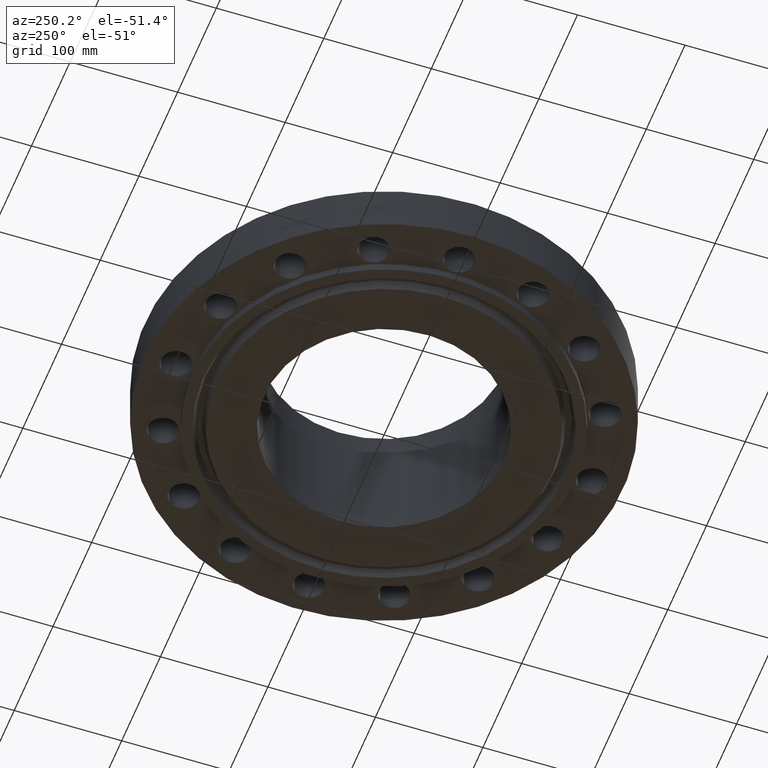
[diagram: clean part render]
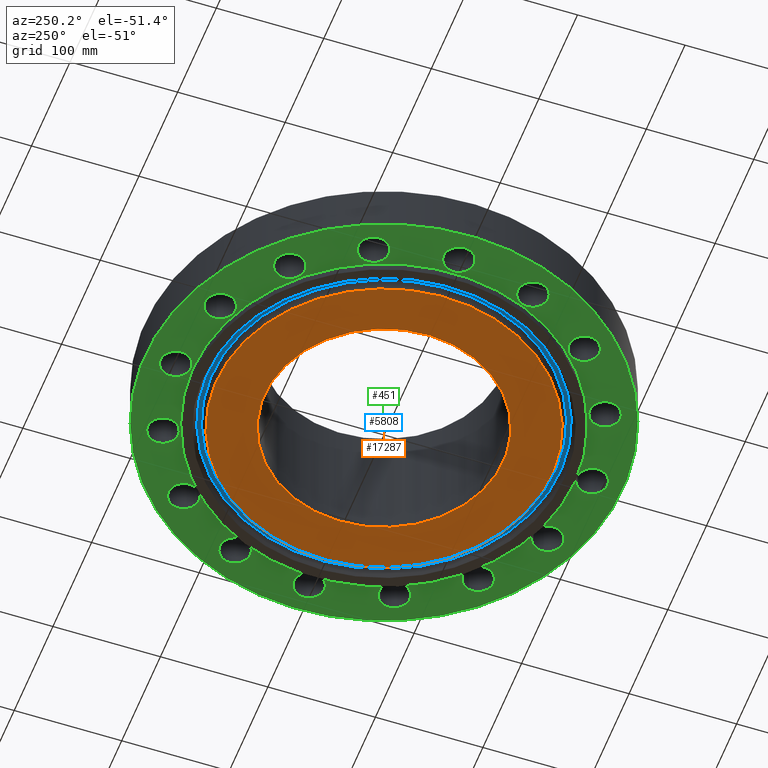
[diagram: same view with three faces highlighted in distinct colors, each labeled with its STEP entity id]
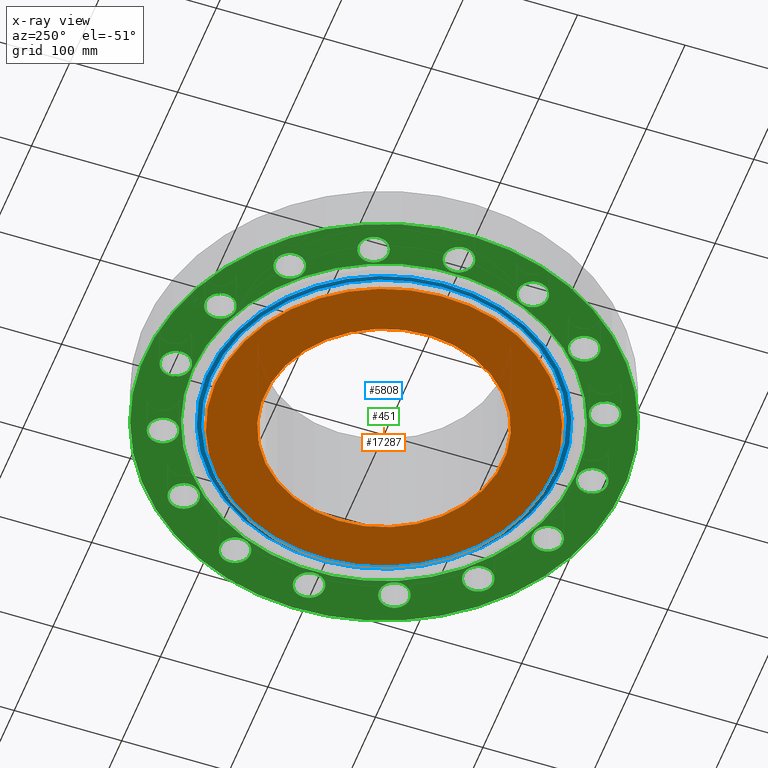
[diagram: x-ray of the same camera — body ghosted, the three highlighted faces saturated]
A machine part, auxiliary view with three faces highlighted in distinct colors.
The next image is the same camera in x-ray (body ghosted, the three faces saturated) — at least one of them is partly hidden behind the body in this view.
Their STEP definitions:

[orange] entity #17287 — the highlighted planar face has unit normal (0, 0, -1).
#1771=AXIS2_PLACEMENT_3D('Plane Axis2P3D',#1768,#1769,#1770) ;
#17189=AXIS2_PLACEMENT_3D('Circle Axis2P3D',#17187,#17188,$) ;
#17213=AXIS2_PLACEMENT_3D('Circle Axis2P3D',#17211,#17212,$) ;
#17271=AXIS2_PLACEMENT_3D('Circle Axis2P3D',#17269,#17270,$) ;
#17280=AXIS2_PLACEMENT_3D('Circle Axis2P3D',#17278,#17279,$) ;
#1768=CARTESIAN_POINT('Axis2P3D Location',(0.,4.37500000002,-0.313000000001)) ;
#17177=CARTESIAN_POINT('Vertex',(-2.94391251983,5.3887957213,-0.313000000001)) ;
#17184=CARTESIAN_POINT('Vertex',(2.94391251983,-5.38879572133,-0.313000000001)) ;
#17187=CARTESIAN_POINT('Axis2P3D Location',(0.,0.,-0.313000000002)) ;
#17211=CARTESIAN_POINT('Axis2P3D Location',(0.,0.,-0.313000000002)) ;
#17269=CARTESIAN_POINT('Axis2P3D Location',(1.28121485424E-011,-2.36649894781E-011,-0.313000000001)) ;
#17273=CARTESIAN_POINT('Vertex',(2.0974867314,3.83942370829,-0.312999999987)) ;
#17275=CARTESIAN_POINT('Vertex',(-2.0974867314,-3.83942370829,-0.313000000001)) ;
#17278=CARTESIAN_POINT('Axis2P3D Location',(-1.28121485424E-011,-9.66673810115E-012,-0.313000000001)) ;
#1769=DIRECTION('Axis2P3D Direction',(0.,0.,-0.0393700787402)) ;
#1770=DIRECTION('Axis2P3D XDirection',(0.0393700787402,0.,0.)) ;
#17188=DIRECTION('Axis2P3D Direction',(0.,0.,0.0393700787402)) ;
#17212=DIRECTION('Axis2P3D Direction',(0.,0.,0.0393700787402)) ;
#17270=DIRECTION('Axis2P3D Direction',(0.,0.,-0.0393700787402)) ;
#17279=DIRECTION('Axis2P3D Direction',(0.,0.,-0.0393700787402)) ;
#17266=ORIENTED_EDGE('',*,*,#17191,.T.) ;
#17267=ORIENTED_EDGE('',*,*,#17215,.T.) ;
#17284=ORIENTED_EDGE('',*,*,#17277,.F.) ;
#17285=ORIENTED_EDGE('',*,*,#17282,.F.) ;
#17286=FACE_BOUND('',#17283,.T.) ;
#17287=ADVANCED_FACE('PartBody',(#17268,#17286),#1772,.T.) ;
#17190=CIRCLE('generated circle',#17189,6.14050000002) ;
#17214=CIRCLE('generated circle',#17213,6.14050000002) ;
#17272=CIRCLE('generated circle',#17271,4.37500000002) ;
#17281=CIRCLE('generated circle',#17280,4.37500000002) ;
#17191=EDGE_CURVE('',#17178,#17185,#17190,.F.) ;
#17215=EDGE_CURVE('',#17185,#17178,#17214,.F.) ;
#17277=EDGE_CURVE('',#17274,#17276,#17272,.T.) ;
#17282=EDGE_CURVE('',#17276,#17274,#17281,.T.) ;
#17265=EDGE_LOOP('',(#17266,#17267)) ;
#17283=EDGE_LOOP('',(#17284,#17285)) ;
#17268=FACE_OUTER_BOUND('',#17265,.T.) ;
#1772=PLANE('',#1771) ;
#17178=VERTEX_POINT('',#17177) ;
#17185=VERTEX_POINT('',#17184) ;
#17274=VERTEX_POINT('',#17273) ;
#17276=VERTEX_POINT('',#17275) ;

[blue] entity #5808 — the highlighted planar face has unit normal (0, 0, -1).
#139=AXIS2_PLACEMENT_3D('Plane Axis2P3D',#136,#137,#138) ;
#2768=AXIS2_PLACEMENT_3D('Circle Axis2P3D',#2766,#2767,$) ;
#2799=AXIS2_PLACEMENT_3D('Circle Axis2P3D',#2797,#2798,$) ;
#5792=AXIS2_PLACEMENT_3D('Circle Axis2P3D',#5790,#5791,$) ;
#5801=AXIS2_PLACEMENT_3D('Circle Axis2P3D',#5799,#5800,$) ;
#136=CARTESIAN_POINT('Axis2P3D Location',(0.,7.00000000003,0.)) ;
#2763=CARTESIAN_POINT('Vertex',(-3.09522925424,5.66577914576,0.)) ;
#2766=CARTESIAN_POINT('Axis2P3D Location',(0.,0.,0.)) ;
#2770=CARTESIAN_POINT('Vertex',(3.09522925424,-5.66577914576,0.)) ;
#2797=CARTESIAN_POINT('Axis2P3D Location',(0.,0.,0.)) ;
#5790=CARTESIAN_POINT('Axis2P3D Location',(5.59482469102E-016,6.70259997985E-013,0.)) ;
#5794=CARTESIAN_POINT('Vertex',(3.01744636302,-5.52339851841,0.)) ;
#5796=CARTESIAN_POINT('Vertex',(-3.01744636302,5.52339851842,0.)) ;
#5799=CARTESIAN_POINT('Axis2P3D Location',(-5.59482469102E-016,6.65784138232E-013,0.)) ;
#137=DIRECTION('Axis2P3D Direction',(0.,0.,-0.0393700787402)) ;
#138=DIRECTION('Axis2P3D XDirection',(0.0393700787402,0.,0.)) ;
#2767=DIRECTION('Axis2P3D Direction',(0.,0.,0.0393700787402)) ;
#2798=DIRECTION('Axis2P3D Direction',(0.,0.,0.0393700787402)) ;
#5791=DIRECTION('Axis2P3D Direction',(0.,0.,-0.0393700787402)) ;
#5800=DIRECTION('Axis2P3D Direction',(0.,0.,-0.0393700787402)) ;
#5787=ORIENTED_EDGE('',*,*,#2772,.F.) ;
#5788=ORIENTED_EDGE('',*,*,#2801,.F.) ;
#5805=ORIENTED_EDGE('',*,*,#5798,.T.) ;
#5806=ORIENTED_EDGE('',*,*,#5803,.T.) ;
#5807=FACE_BOUND('',#5804,.T.) ;
#5808=ADVANCED_FACE('PartBody',(#5789,#5807),#140,.T.) ;
#2769=CIRCLE('generated circle',#2768,6.45612093016) ;
#2800=CIRCLE('generated circle',#2799,6.45612093016) ;
#5793=CIRCLE('generated circle',#5792,6.29387906993) ;
#5802=CIRCLE('generated circle',#5801,6.29387906993) ;
#2772=EDGE_CURVE('',#2764,#2771,#2769,.T.) ;
#2801=EDGE_CURVE('',#2771,#2764,#2800,.T.) ;
#5798=EDGE_CURVE('',#5795,#5797,#5793,.F.) ;
#5803=EDGE_CURVE('',#5797,#5795,#5802,.F.) ;
#5786=EDGE_LOOP('',(#5787,#5788)) ;
#5804=EDGE_LOOP('',(#5805,#5806)) ;
#5789=FACE_OUTER_BOUND('',#5786,.T.) ;
#140=PLANE('',#139) ;
#2764=VERTEX_POINT('',#2763) ;
#2771=VERTEX_POINT('',#2770) ;
#5795=VERTEX_POINT('',#5794) ;
#5797=VERTEX_POINT('',#5796) ;

[green] entity #451 — the highlighted planar face has unit normal (0, 0, -1).
#51=AXIS2_PLACEMENT_3D('Circle Axis2P3D',#49,#50,$) ;
#139=AXIS2_PLACEMENT_3D('Plane Axis2P3D',#136,#137,#138) ;
#143=AXIS2_PLACEMENT_3D('Circle Axis2P3D',#141,#142,$) ;
#152=AXIS2_PLACEMENT_3D('Circle Axis2P3D',#150,#151,$) ;
#165=AXIS2_PLACEMENT_3D('Circle Axis2P3D',#163,#164,$) ;
#174=AXIS2_PLACEMENT_3D('Circle Axis2P3D',#172,#173,$) ;
#183=AXIS2_PLACEMENT_3D('Circle Axis2P3D',#181,#182,$) ;
#192=AXIS2_PLACEMENT_3D('Circle Axis2P3D',#190,#191,$) ;
#201=AXIS2_PLACEMENT_3D('Circle Axis2P3D',#199,#200,$) ;
#210=AXIS2_PLACEMENT_3D('Circle Axis2P3D',#208,#209,$) ;
#219=AXIS2_PLACEMENT_3D('Circle Axis2P3D',#217,#218,$) ;
#228=AXIS2_PLACEMENT_3D('Circle Axis2P3D',#226,#227,$) ;
#237=AXIS2_PLACEMENT_3D('Circle Axis2P3D',#235,#236,$) ;
#246=AXIS2_PLACEMENT_3D('Circle Axis2P3D',#244,#245,$) ;
#255=AXIS2_PLACEMENT_3D('Circle Axis2P3D',#253,#254,$) ;
#264=AXIS2_PLACEMENT_3D('Circle Axis2P3D',#262,#263,$) ;
#273=AXIS2_PLACEMENT_3D('Circle Axis2P3D',#271,#272,$) ;
#282=AXIS2_PLACEMENT_3D('Circle Axis2P3D',#280,#281,$) ;
#291=AXIS2_PLACEMENT_3D('Circle Axis2P3D',#289,#290,$) ;
#300=AXIS2_PLACEMENT_3D('Circle Axis2P3D',#298,#299,$) ;
#309=AXIS2_PLACEMENT_3D('Circle Axis2P3D',#307,#308,$) ;
#318=AXIS2_PLACEMENT_3D('Circle Axis2P3D',#316,#317,$) ;
#327=AXIS2_PLACEMENT_3D('Circle Axis2P3D',#325,#326,$) ;
#336=AXIS2_PLACEMENT_3D('Circle Axis2P3D',#334,#335,$) ;
#345=AXIS2_PLACEMENT_3D('Circle Axis2P3D',#343,#344,$) ;
#354=AXIS2_PLACEMENT_3D('Circle Axis2P3D',#352,#353,$) ;
#363=AXIS2_PLACEMENT_3D('Circle Axis2P3D',#361,#362,$) ;
#372=AXIS2_PLACEMENT_3D('Circle Axis2P3D',#370,#371,$) ;
#381=AXIS2_PLACEMENT_3D('Circle Axis2P3D',#379,#380,$) ;
#390=AXIS2_PLACEMENT_3D('Circle Axis2P3D',#388,#389,$) ;
#399=AXIS2_PLACEMENT_3D('Circle Axis2P3D',#397,#398,$) ;
#408=AXIS2_PLACEMENT_3D('Circle Axis2P3D',#406,#407,$) ;
#417=AXIS2_PLACEMENT_3D('Circle Axis2P3D',#415,#416,$) ;
#426=AXIS2_PLACEMENT_3D('Circle Axis2P3D',#424,#425,$) ;
#435=AXIS2_PLACEMENT_3D('Circle Axis2P3D',#433,#434,$) ;
#444=AXIS2_PLACEMENT_3D('Circle Axis2P3D',#442,#443,$) ;
#44=CARTESIAN_POINT('Vertex',(-0.49144623466,7.89347830165,1.04684764794E-011)) ;
#49=CARTESIAN_POINT('Axis2P3D Location',(0.,7.62500000003,1.04684764794E-011)) ;
#53=CARTESIAN_POINT('Vertex',(0.49144623466,7.35652169841,1.04684764794E-011)) ;
#89=CARTESIAN_POINT('Control Point',(0.49144623466,7.35652169841,1.04684764794E-011)) ;
#90=CARTESIAN_POINT('Control Point',(0.449273761659,7.27932550439,9.94505265541E-012)) ;
#91=CARTESIAN_POINT('Control Point',(0.391943851407,7.21040985608,9.42162883144E-012)) ;
#92=CARTESIAN_POINT('Control Point',(0.321612228624,7.1537563852,8.89806513685E-012)) ;
#93=CARTESIAN_POINT('Control Point',(0.162524834083,7.07107905055,7.85121748891E-012)) ;
#94=CARTESIAN_POINT('Control Point',(-0.0160133470284,7.05469434265,6.80436984098E-012)) ;
#95=CARTESIAN_POINT('Control Point',(-0.105805367865,7.06436625662,6.28108588763E-012)) ;
#96=CARTESIAN_POINT('Control Point',(-0.27675884733,7.11839632812,5.23423823969E-012)) ;
#97=CARTESIAN_POINT('Control Point',(-0.414590143954,7.23305614862,4.18739059175E-012)) ;
#98=CARTESIAN_POINT('Control Point',(-0.471243614831,7.30338777141,3.6641066384E-012)) ;
#99=CARTESIAN_POINT('Control Point',(-0.553920949483,7.46247516595,2.61725899046E-012)) ;
#100=CARTESIAN_POINT('Control Point',(-0.570305657377,7.64101334706,1.57041134252E-012)) ;
#101=CARTESIAN_POINT('Control Point',(-0.56063374341,7.7308053679,1.04684764794E-012)) ;
#102=CARTESIAN_POINT('Control Point',(-0.533618707661,7.81628210763,5.23423823969E-013)) ;
#103=CARTESIAN_POINT('Control Point',(-0.49144623466,7.89347830165,7.2270839624E-029)) ;
#136=CARTESIAN_POINT('Axis2P3D Location',(0.,7.00000000003,0.)) ;
#141=CARTESIAN_POINT('Axis2P3D Location',(-1.1189649382E-015,6.68022068108E-013,0.)) ;
#145=CARTESIAN_POINT('Vertex',(-4.19497346278,-7.67884741655,0.)) ;
#147=CARTESIAN_POINT('Vertex',(4.1949734628,7.67884741657,-3.01281309612E-011)) ;
#150=CARTESIAN_POINT('Axis2P3D Location',(1.1189649382E-015,6.68022068108E-013,0.)) ;
#163=CARTESIAN_POINT('Axis2P3D Location',(-5.59482469102E-016,6.68022068108E-013,0.)) ;
#167=CARTESIAN_POINT('Vertex',(3.35597877024,6.14307793327,0.)) ;
#169=CARTESIAN_POINT('Vertex',(-3.35597877025,-6.14307793326,-3.01281309612E-011)) ;
#172=CARTESIAN_POINT('Axis2P3D Location',(5.59482469102E-016,6.68022068108E-013,0.)) ;
#181=CARTESIAN_POINT('Axis2P3D Location',(2.91796117181,7.04458143544,0.)) ;
#185=CARTESIAN_POINT('Vertex',(2.56666625227,7.48069137511,0.)) ;
#187=CARTESIAN_POINT('Vertex',(3.26925609136,6.60847149577,0.)) ;
#190=CARTESIAN_POINT('Axis2P3D Location',(2.91796117181,7.04458143544,0.)) ;
#199=CARTESIAN_POINT('Axis2P3D Location',(5.39168920658,5.39168920658,0.)) ;
#203=CARTESIAN_POINT('Vertex',(5.23402706911,5.92903699939,0.)) ;
#205=CARTESIAN_POINT('Vertex',(5.54935134405,4.85434141377,0.)) ;
#208=CARTESIAN_POINT('Axis2P3D Location',(5.39168920658,5.39168920658,0.)) ;
#217=CARTESIAN_POINT('Axis2P3D Location',(7.0445814354,2.91796117178,0.)) ;
#221=CARTESIAN_POINT('Vertex',(7.10455471129,3.47474048728,0.)) ;
#223=CARTESIAN_POINT('Vertex',(6.98460815951,2.36118185627,0.)) ;
#226=CARTESIAN_POINT('Axis2P3D Location',(7.0445814354,2.91796117178,0.)) ;
#235=CARTESIAN_POINT('Axis2P3D Location',(7.62500000003,6.68022068108E-013,0.)) ;
#239=CARTESIAN_POINT('Vertex',(7.89347830163,0.491446234638,0.)) ;
#241=CARTESIAN_POINT('Vertex',(7.35652169843,-0.491446234637,0.)) ;
#244=CARTESIAN_POINT('Axis2P3D Location',(7.62500000003,6.68022068108E-013,0.)) ;
#253=CARTESIAN_POINT('Axis2P3D Location',(7.04458143544,-2.91796117181,0.)) ;
#257=CARTESIAN_POINT('Vertex',(7.48069137511,-2.56666625227,0.)) ;
#259=CARTESIAN_POINT('Vertex',(6.60847149577,-3.26925609136,0.)) ;
#262=CARTESIAN_POINT('Axis2P3D Location',(7.04458143544,-2.91796117181,0.)) ;
#271=CARTESIAN_POINT('Axis2P3D Location',(5.39168920658,-5.39168920658,0.)) ;
#275=CARTESIAN_POINT('Vertex',(5.92903699939,-5.23402706911,0.)) ;
#277=CARTESIAN_POINT('Vertex',(4.85434141377,-5.54935134405,0.)) ;
#280=CARTESIAN_POINT('Axis2P3D Location',(5.39168920658,-5.39168920658,0.)) ;
#289=CARTESIAN_POINT('Axis2P3D Location',(2.91796117177,-7.04458143547,0.)) ;
#293=CARTESIAN_POINT('Vertex',(3.47474048728,-7.10455471129,0.)) ;
#295=CARTESIAN_POINT('Vertex',(2.36118185627,-6.98460815951,0.)) ;
#298=CARTESIAN_POINT('Axis2P3D Location',(2.91796117178,-7.0445814354,0.)) ;
#307=CARTESIAN_POINT('Axis2P3D Location',(-1.74838271595E-017,-7.62500000003,0.)) ;
#311=CARTESIAN_POINT('Vertex',(0.491446234638,-7.89347830162,0.)) ;
#313=CARTESIAN_POINT('Vertex',(-0.491446234638,-7.35652169843,0.)) ;
#316=CARTESIAN_POINT('Axis2P3D Location',(1.74838271595E-017,-7.62500000003,0.)) ;
#325=CARTESIAN_POINT('Axis2P3D Location',(-2.91796117181,-7.04458143544,0.)) ;
#329=CARTESIAN_POINT('Vertex',(-2.56666625227,-7.48069137511,0.)) ;
#331=CARTESIAN_POINT('Vertex',(-3.26925609136,-6.60847149577,0.)) ;
#334=CARTESIAN_POINT('Axis2P3D Location',(-2.91796117181,-7.04458143544,0.)) ;
#343=CARTESIAN_POINT('Axis2P3D Location',(-5.39168920658,-5.39168920658,0.)) ;
#347=CARTESIAN_POINT('Vertex',(-5.23402706911,-5.92903699938,0.)) ;
#349=CARTESIAN_POINT('Vertex',(-5.54935134405,-4.85434141377,0.)) ;
#352=CARTESIAN_POINT('Axis2P3D Location',(-5.39168920658,-5.39168920658,0.)) ;
#361=CARTESIAN_POINT('Axis2P3D Location',(-7.0445814354,-2.91796117178,0.)) ;
#365=CARTESIAN_POINT('Vertex',(-7.10455471129,-3.47474048728,0.)) ;
#367=CARTESIAN_POINT('Vertex',(-6.98460815951,-2.36118185627,0.)) ;
#370=CARTESIAN_POINT('Axis2P3D Location',(-7.0445814354,-2.91796117178,0.)) ;
#379=CARTESIAN_POINT('Axis2P3D Location',(-7.62500000003,6.68022068108E-013,0.)) ;
#383=CARTESIAN_POINT('Vertex',(-7.89347830163,-0.491446234637,0.)) ;
#385=CARTESIAN_POINT('Vertex',(-7.35652169843,0.491446234638,0.)) ;
#388=CARTESIAN_POINT('Axis2P3D Location',(-7.62500000003,6.68022068108E-013,0.)) ;
#397=CARTESIAN_POINT('Axis2P3D Location',(-7.04458143544,2.91796117181,0.)) ;
#401=CARTESIAN_POINT('Vertex',(-7.48069137511,2.56666625227,0.)) ;
#403=CARTESIAN_POINT('Vertex',(-6.60847149577,3.26925609136,0.)) ;
#406=CARTESIAN_POINT('Axis2P3D Location',(-7.04458143544,2.91796117181,0.)) ;
#415=CARTESIAN_POINT('Axis2P3D Location',(-5.39168920658,5.39168920658,0.)) ;
#419=CARTESIAN_POINT('Vertex',(-5.92903699939,5.23402706911,0.)) ;
#421=CARTESIAN_POINT('Vertex',(-4.85434141377,5.54935134405,0.)) ;
#424=CARTESIAN_POINT('Axis2P3D Location',(-5.39168920658,5.39168920658,0.)) ;
#433=CARTESIAN_POINT('Axis2P3D Location',(-2.91796117178,7.0445814354,0.)) ;
#437=CARTESIAN_POINT('Vertex',(-3.47474048728,7.10455471129,0.)) ;
#439=CARTESIAN_POINT('Vertex',(-2.36118185627,6.98460815951,0.)) ;
#442=CARTESIAN_POINT('Axis2P3D Location',(-2.91796117178,7.0445814354,0.)) ;
#50=DIRECTION('Axis2P3D Direction',(0.,-0.,-0.0393700787402)) ;
#137=DIRECTION('Axis2P3D Direction',(0.,0.,-0.0393700787402)) ;
#138=DIRECTION('Axis2P3D XDirection',(0.0393700787402,0.,0.)) ;
#142=DIRECTION('Axis2P3D Direction',(0.,0.,-0.0393700787402)) ;
#151=DIRECTION('Axis2P3D Direction',(0.,0.,-0.0393700787402)) ;
#164=DIRECTION('Axis2P3D Direction',(0.,0.,-0.0393700787402)) ;
#173=DIRECTION('Axis2P3D Direction',(0.,0.,-0.0393700787402)) ;
#182=DIRECTION('Axis2P3D Direction',(0.,0.,-0.0393700787402)) ;
#191=DIRECTION('Axis2P3D Direction',(0.,0.,-0.0393700787402)) ;
#200=DIRECTION('Axis2P3D Direction',(0.,0.,-0.0393700787402)) ;
#209=DIRECTION('Axis2P3D Direction',(0.,0.,-0.0393700787402)) ;
#218=DIRECTION('Axis2P3D Direction',(0.,0.,-0.0393700787402)) ;
#227=DIRECTION('Axis2P3D Direction',(0.,0.,-0.0393700787402)) ;
#236=DIRECTION('Axis2P3D Direction',(0.,0.,-0.0393700787402)) ;
#245=DIRECTION('Axis2P3D Direction',(0.,0.,-0.0393700787402)) ;
#254=DIRECTION('Axis2P3D Direction',(0.,0.,-0.0393700787402)) ;
#263=DIRECTION('Axis2P3D Direction',(0.,0.,-0.0393700787402)) ;
#272=DIRECTION('Axis2P3D Direction',(0.,0.,-0.0393700787402)) ;
#281=DIRECTION('Axis2P3D Direction',(0.,0.,-0.0393700787402)) ;
#290=DIRECTION('Axis2P3D Direction',(0.,0.,-0.0393700787402)) ;
#299=DIRECTION('Axis2P3D Direction',(0.,0.,-0.0393700787402)) ;
#308=DIRECTION('Axis2P3D Direction',(0.,0.,-0.0393700787402)) ;
#317=DIRECTION('Axis2P3D Direction',(0.,0.,-0.0393700787402)) ;
#326=DIRECTION('Axis2P3D Direction',(0.,0.,-0.0393700787402)) ;
#335=DIRECTION('Axis2P3D Direction',(0.,0.,-0.0393700787402)) ;
#344=DIRECTION('Axis2P3D Direction',(0.,0.,-0.0393700787402)) ;
#353=DIRECTION('Axis2P3D Direction',(0.,0.,-0.0393700787402)) ;
#362=DIRECTION('Axis2P3D Direction',(0.,0.,-0.0393700787402)) ;
#371=DIRECTION('Axis2P3D Direction',(0.,0.,-0.0393700787402)) ;
#380=DIRECTION('Axis2P3D Direction',(0.,0.,-0.0393700787402)) ;
#389=DIRECTION('Axis2P3D Direction',(0.,0.,-0.0393700787402)) ;
#398=DIRECTION('Axis2P3D Direction',(0.,0.,-0.0393700787402)) ;
#407=DIRECTION('Axis2P3D Direction',(0.,0.,-0.0393700787402)) ;
#416=DIRECTION('Axis2P3D Direction',(0.,0.,-0.0393700787402)) ;
#425=DIRECTION('Axis2P3D Direction',(0.,0.,-0.0393700787402)) ;
#434=DIRECTION('Axis2P3D Direction',(0.,0.,-0.0393700787402)) ;
#443=DIRECTION('Axis2P3D Direction',(0.,0.,-0.0393700787402)) ;
#156=ORIENTED_EDGE('',*,*,#149,.T.) ;
#157=ORIENTED_EDGE('',*,*,#154,.T.) ;
#160=ORIENTED_EDGE('',*,*,#104,.F.) ;
#161=ORIENTED_EDGE('',*,*,#55,.F.) ;
#178=ORIENTED_EDGE('',*,*,#171,.F.) ;
#179=ORIENTED_EDGE('',*,*,#176,.F.) ;
#196=ORIENTED_EDGE('',*,*,#189,.F.) ;
#197=ORIENTED_EDGE('',*,*,#194,.F.) ;
#214=ORIENTED_EDGE('',*,*,#207,.F.) ;
#215=ORIENTED_EDGE('',*,*,#212,.F.) ;
#232=ORIENTED_EDGE('',*,*,#225,.F.) ;
#233=ORIENTED_EDGE('',*,*,#230,.F.) ;
#250=ORIENTED_EDGE('',*,*,#243,.F.) ;
#251=ORIENTED_EDGE('',*,*,#248,.F.) ;
#268=ORIENTED_EDGE('',*,*,#261,.F.) ;
#269=ORIENTED_EDGE('',*,*,#266,.F.) ;
#286=ORIENTED_EDGE('',*,*,#279,.F.) ;
#287=ORIENTED_EDGE('',*,*,#284,.F.) ;
#304=ORIENTED_EDGE('',*,*,#297,.F.) ;
#305=ORIENTED_EDGE('',*,*,#302,.F.) ;
#322=ORIENTED_EDGE('',*,*,#315,.F.) ;
#323=ORIENTED_EDGE('',*,*,#320,.F.) ;
#340=ORIENTED_EDGE('',*,*,#333,.F.) ;
#341=ORIENTED_EDGE('',*,*,#338,.F.) ;
#358=ORIENTED_EDGE('',*,*,#351,.F.) ;
#359=ORIENTED_EDGE('',*,*,#356,.F.) ;
#376=ORIENTED_EDGE('',*,*,#369,.F.) ;
#377=ORIENTED_EDGE('',*,*,#374,.F.) ;
#394=ORIENTED_EDGE('',*,*,#387,.F.) ;
#395=ORIENTED_EDGE('',*,*,#392,.F.) ;
#412=ORIENTED_EDGE('',*,*,#405,.F.) ;
#413=ORIENTED_EDGE('',*,*,#410,.F.) ;
#430=ORIENTED_EDGE('',*,*,#423,.F.) ;
#431=ORIENTED_EDGE('',*,*,#428,.F.) ;
#448=ORIENTED_EDGE('',*,*,#441,.F.) ;
#449=ORIENTED_EDGE('',*,*,#446,.F.) ;
#162=FACE_BOUND('',#159,.T.) ;
#180=FACE_BOUND('',#177,.T.) ;
#198=FACE_BOUND('',#195,.T.) ;
#216=FACE_BOUND('',#213,.T.) ;
#234=FACE_BOUND('',#231,.T.) ;
#252=FACE_BOUND('',#249,.T.) ;
#270=FACE_BOUND('',#267,.T.) ;
#288=FACE_BOUND('',#285,.T.) ;
#306=FACE_BOUND('',#303,.T.) ;
#324=FACE_BOUND('',#321,.T.) ;
#342=FACE_BOUND('',#339,.T.) ;
#360=FACE_BOUND('',#357,.T.) ;
#378=FACE_BOUND('',#375,.T.) ;
#396=FACE_BOUND('',#393,.T.) ;
#414=FACE_BOUND('',#411,.T.) ;
#432=FACE_BOUND('',#429,.T.) ;
#450=FACE_BOUND('',#447,.T.) ;
#451=ADVANCED_FACE('PartBody',(#158,#162,#180,#198,#216,#234,#252,#270,#288,#306,#324,#342,#360,#378,#396,#414,#432,#450),#140,.T.) ;
#88=B_SPLINE_CURVE_WITH_KNOTS('',5,(#89,#90,#91,#92,#93,#94,#95,#96,#97,#98,#99,#100,#101,#102,#103),.UNSPECIFIED.,.F.,.U.,(6,3,3,3,6),(-22.3430069524,-11.1715034762,0.,11.1715034762,22.3430069524),.UNSPECIFIED.) ;
#52=CIRCLE('generated circle',#51,0.560000000002) ;
#144=CIRCLE('generated circle',#143,8.75) ;
#153=CIRCLE('generated circle',#152,8.75) ;
#166=CIRCLE('generated circle',#165,7.00000000003) ;
#175=CIRCLE('generated circle',#174,7.00000000003) ;
#184=CIRCLE('generated circle',#183,0.559999999982) ;
#193=CIRCLE('generated circle',#192,0.559999999982) ;
#202=CIRCLE('generated circle',#201,0.560000000025) ;
#211=CIRCLE('generated circle',#210,0.560000000025) ;
#220=CIRCLE('generated circle',#219,0.559999999995) ;
#229=CIRCLE('generated circle',#228,0.559999999995) ;
#238=CIRCLE('generated circle',#237,0.559999999971) ;
#247=CIRCLE('generated circle',#246,0.559999999971) ;
#256=CIRCLE('generated circle',#255,0.559999999982) ;
#265=CIRCLE('generated circle',#264,0.559999999982) ;
#274=CIRCLE('generated circle',#273,0.560000000025) ;
#283=CIRCLE('generated circle',#282,0.560000000025) ;
#292=CIRCLE('generated circle',#291,0.559999999995) ;
#301=CIRCLE('generated circle',#300,0.559999999995) ;
#310=CIRCLE('generated circle',#309,0.559999999971) ;
#319=CIRCLE('generated circle',#318,0.559999999971) ;
#328=CIRCLE('generated circle',#327,0.559999999982) ;
#337=CIRCLE('generated circle',#336,0.559999999982) ;
#346=CIRCLE('generated circle',#345,0.560000000025) ;
#355=CIRCLE('generated circle',#354,0.560000000025) ;
#364=CIRCLE('generated circle',#363,0.559999999995) ;
#373=CIRCLE('generated circle',#372,0.559999999995) ;
#382=CIRCLE('generated circle',#381,0.559999999971) ;
#391=CIRCLE('generated circle',#390,0.559999999971) ;
#400=CIRCLE('generated circle',#399,0.559999999982) ;
#409=CIRCLE('generated circle',#408,0.559999999982) ;
#418=CIRCLE('generated circle',#417,0.560000000025) ;
#427=CIRCLE('generated circle',#426,0.560000000025) ;
#436=CIRCLE('generated circle',#435,0.559999999995) ;
#445=CIRCLE('generated circle',#444,0.559999999995) ;
#55=EDGE_CURVE('',#45,#54,#52,.T.) ;
#104=EDGE_CURVE('',#54,#45,#88,.T.) ;
#149=EDGE_CURVE('',#146,#148,#144,.T.) ;
#154=EDGE_CURVE('',#148,#146,#153,.T.) ;
#171=EDGE_CURVE('',#168,#170,#166,.T.) ;
#176=EDGE_CURVE('',#170,#168,#175,.T.) ;
#189=EDGE_CURVE('',#186,#188,#184,.T.) ;
#194=EDGE_CURVE('',#188,#186,#193,.T.) ;
#207=EDGE_CURVE('',#204,#206,#202,.T.) ;
#212=EDGE_CURVE('',#206,#204,#211,.T.) ;
#225=EDGE_CURVE('',#222,#224,#220,.T.) ;
#230=EDGE_CURVE('',#224,#222,#229,.T.) ;
#243=EDGE_CURVE('',#240,#242,#238,.T.) ;
#248=EDGE_CURVE('',#242,#240,#247,.T.) ;
#261=EDGE_CURVE('',#258,#260,#256,.T.) ;
#266=EDGE_CURVE('',#260,#258,#265,.T.) ;
#279=EDGE_CURVE('',#276,#278,#274,.T.) ;
#284=EDGE_CURVE('',#278,#276,#283,.T.) ;
#297=EDGE_CURVE('',#294,#296,#292,.T.) ;
#302=EDGE_CURVE('',#296,#294,#301,.T.) ;
#315=EDGE_CURVE('',#312,#314,#310,.T.) ;
#320=EDGE_CURVE('',#314,#312,#319,.T.) ;
#333=EDGE_CURVE('',#330,#332,#328,.T.) ;
#338=EDGE_CURVE('',#332,#330,#337,.T.) ;
#351=EDGE_CURVE('',#348,#350,#346,.T.) ;
#356=EDGE_CURVE('',#350,#348,#355,.T.) ;
#369=EDGE_CURVE('',#366,#368,#364,.T.) ;
#374=EDGE_CURVE('',#368,#366,#373,.T.) ;
#387=EDGE_CURVE('',#384,#386,#382,.T.) ;
#392=EDGE_CURVE('',#386,#384,#391,.T.) ;
#405=EDGE_CURVE('',#402,#404,#400,.T.) ;
#410=EDGE_CURVE('',#404,#402,#409,.T.) ;
#423=EDGE_CURVE('',#420,#422,#418,.T.) ;
#428=EDGE_CURVE('',#422,#420,#427,.T.) ;
#441=EDGE_CURVE('',#438,#440,#436,.T.) ;
#446=EDGE_CURVE('',#440,#438,#445,.T.) ;
#155=EDGE_LOOP('',(#156,#157)) ;
#159=EDGE_LOOP('',(#160,#161)) ;
#177=EDGE_LOOP('',(#178,#179)) ;
#195=EDGE_LOOP('',(#196,#197)) ;
#213=EDGE_LOOP('',(#214,#215)) ;
#231=EDGE_LOOP('',(#232,#233)) ;
#249=EDGE_LOOP('',(#250,#251)) ;
#267=EDGE_LOOP('',(#268,#269)) ;
#285=EDGE_LOOP('',(#286,#287)) ;
#303=EDGE_LOOP('',(#304,#305)) ;
#321=EDGE_LOOP('',(#322,#323)) ;
#339=EDGE_LOOP('',(#340,#341)) ;
#357=EDGE_LOOP('',(#358,#359)) ;
#375=EDGE_LOOP('',(#376,#377)) ;
#393=EDGE_LOOP('',(#394,#395)) ;
#411=EDGE_LOOP('',(#412,#413)) ;
#429=EDGE_LOOP('',(#430,#431)) ;
#447=EDGE_LOOP('',(#448,#449)) ;
#158=FACE_OUTER_BOUND('',#155,.T.) ;
#140=PLANE('',#139) ;
#45=VERTEX_POINT('',#44) ;
#54=VERTEX_POINT('',#53) ;
#146=VERTEX_POINT('',#145) ;
#148=VERTEX_POINT('',#147) ;
#168=VERTEX_POINT('',#167) ;
#170=VERTEX_POINT('',#169) ;
#186=VERTEX_POINT('',#185) ;
#188=VERTEX_POINT('',#187) ;
#204=VERTEX_POINT('',#203) ;
#206=VERTEX_POINT('',#205) ;
#222=VERTEX_POINT('',#221) ;
#224=VERTEX_POINT('',#223) ;
#240=VERTEX_POINT('',#239) ;
#242=VERTEX_POINT('',#241) ;
#258=VERTEX_POINT('',#257) ;
#260=VERTEX_POINT('',#259) ;
#276=VERTEX_POINT('',#275) ;
#278=VERTEX_POINT('',#277) ;
#294=VERTEX_POINT('',#293) ;
#296=VERTEX_POINT('',#295) ;
#312=VERTEX_POINT('',#311) ;
#314=VERTEX_POINT('',#313) ;
#330=VERTEX_POINT('',#329) ;
#332=VERTEX_POINT('',#331) ;
#348=VERTEX_POINT('',#347) ;
#350=VERTEX_POINT('',#349) ;
#366=VERTEX_POINT('',#365) ;
#368=VERTEX_POINT('',#367) ;
#384=VERTEX_POINT('',#383) ;
#386=VERTEX_POINT('',#385) ;
#402=VERTEX_POINT('',#401) ;
#404=VERTEX_POINT('',#403) ;
#420=VERTEX_POINT('',#419) ;
#422=VERTEX_POINT('',#421) ;
#438=VERTEX_POINT('',#437) ;
#440=VERTEX_POINT('',#439) ;